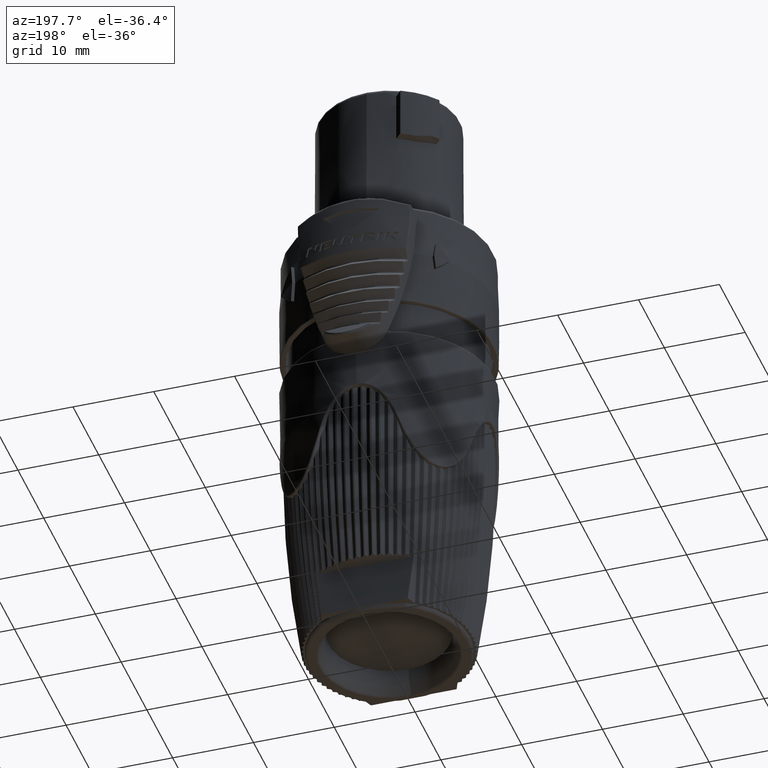
[diagram: clean part render]
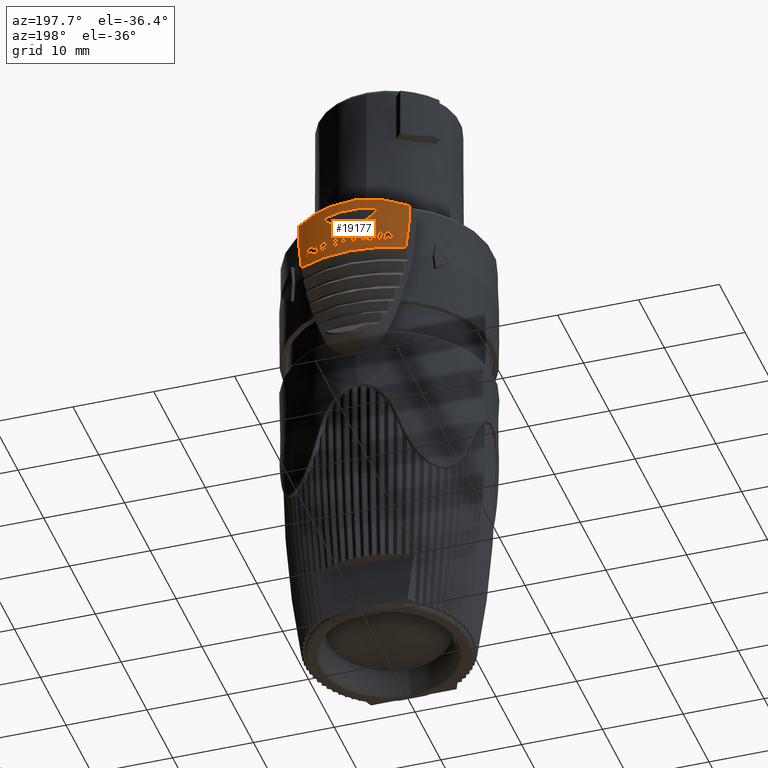
[diagram: same view with one face highlighted and labeled with its STEP entity id]
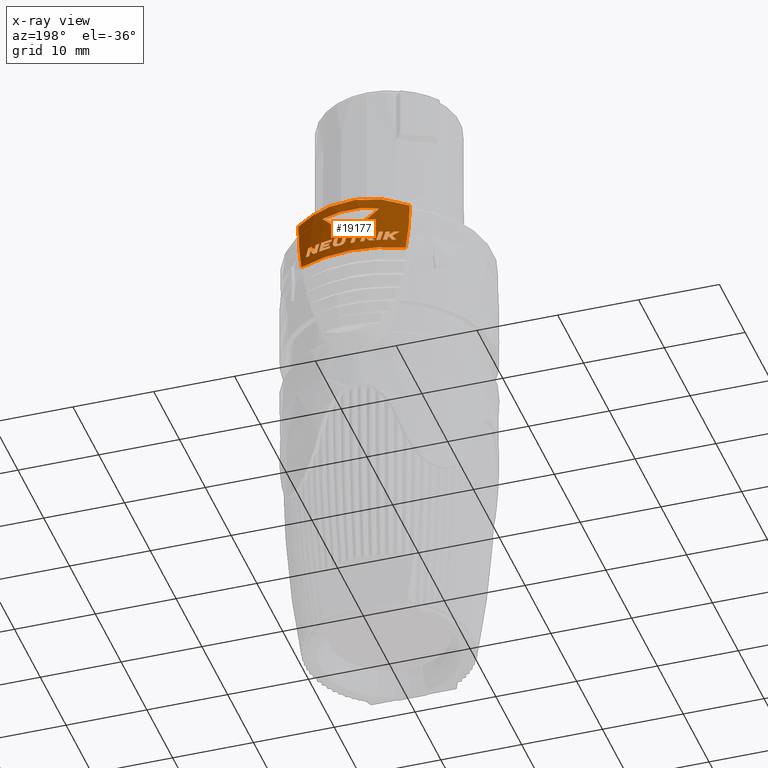
[diagram: x-ray of the same camera — body ghosted, the highlighted face saturated]
A machine part, auxiliary view. The second image highlights one B-rep face of the part: STEP entity #19177.
The next image is the same camera in x-ray: the body ghosted, the highlighted face saturated — about 0% of this face is hidden behind the body in this view.
In plain terms, the highlighted cylindrical surface (partial cylindrical patch) has radius 15.3 mm, axis along (0, 0, 1).
Its self-contained STEP definition (entity closure, byte-faithful):
#1037=CARTESIAN_POINT('',(-3.5E0,1.489429420953E1,1.119136866752E1));
#1038=CARTESIAN_POINT('',(-3.250859314078E0,1.495283960876E1,1.089114471962E1));
#1039=CARTESIAN_POINT('',(-2.726627167439E0,1.506286294228E1,1.033042631570E1));
#1040=CARTESIAN_POINT('',(-1.865806232586E0,1.519467039170E1,9.597453933149E0));
#1041=CARTESIAN_POINT('',(-9.507850406610E-1,1.527994694134E1,
8.980316596755E0));
#1042=CARTESIAN_POINT('',(-3.202698024132E-1,1.53E1,8.648022277679E0));
#1043=CARTESIAN_POINT('',(0.E0,1.53E1,8.5E0));
#1045=CARTESIAN_POINT('',(3.5E0,1.489429420953E1,1.119136866752E1));
#1046=CARTESIAN_POINT('',(3.045887542349E0,1.500100578508E1,1.127208391025E1));
#1047=CARTESIAN_POINT('',(2.125196630928E0,1.517373911809E1,1.140345153750E1));
#1048=CARTESIAN_POINT('',(7.080184998540E-1,1.530557260508E1,1.150425816914E1));
#1049=CARTESIAN_POINT('',(-7.080175151263E-1,1.530557267202E1,
1.150425822037E1));
#1050=CARTESIAN_POINT('',(-2.125196552856E0,1.517373914906E1,1.140345156103E1));
#1051=CARTESIAN_POINT('',(-3.045887538076E0,1.500100578608E1,1.127208391101E1));
#1052=CARTESIAN_POINT('',(-3.5E0,1.489429420953E1,1.119136866752E1));
#1054=CARTESIAN_POINT('',(0.E0,1.53E1,8.5E0));
#1055=CARTESIAN_POINT('',(3.202698375412E-1,1.53E1,8.648022293915E0));
#1056=CARTESIAN_POINT('',(9.507851189288E-1,1.527994693835E1,8.980316638392E0));
#1057=CARTESIAN_POINT('',(1.865806372634E0,1.519467037329E1,9.597454042785E0));
#1058=CARTESIAN_POINT('',(2.726627156356E0,1.506286294222E1,1.033042631250E1));
#1059=CARTESIAN_POINT('',(3.250859309730E0,1.495283960978E1,1.089114471438E1));
#1060=CARTESIAN_POINT('',(3.5E0,1.489429420953E1,1.119136866752E1));
#1062=CARTESIAN_POINT('',(-2.757279367205E0,1.504949867907E1,7.765E0));
#1063=CARTESIAN_POINT('',(-2.780447442119E0,1.504525396259E1,7.768070795839E0));
#1064=CARTESIAN_POINT('',(-2.825972135931E0,1.503680765675E1,7.765867209227E0));
#1065=CARTESIAN_POINT('',(-2.896092286512E0,1.502345389755E1,7.738144346066E0));
#1066=CARTESIAN_POINT('',(-2.954475606103E0,1.501205884341E1,7.690353243706E0));
#1067=CARTESIAN_POINT('',(-2.993089402795E0,1.500438508925E1,7.614803181507E0));
#1068=CARTESIAN_POINT('',(-2.999597263091E0,1.500307870172E1,7.531387846963E0));
#1069=CARTESIAN_POINT('',(-2.980256059318E0,1.500694565625E1,7.440967906742E0));
#1070=CARTESIAN_POINT('',(-2.932295302121E0,1.501642270586E1,7.357073532108E0));
#1071=CARTESIAN_POINT('',(-2.855716353819E0,1.503122236246E1,7.283920001483E0));
#1072=CARTESIAN_POINT('',(-2.756092445735E0,1.504984603170E1,7.221148625209E0));
#1073=CARTESIAN_POINT('',(-2.642686076128E0,1.507021298875E1,7.164380091546E0));
#1074=CARTESIAN_POINT('',(-2.557043198896E0,1.508487241533E1,7.122113872369E0));
#1075=CARTESIAN_POINT('',(-2.514665737191E0,1.509193348217E1,7.095519948886E0));
#1092=CARTESIAN_POINT('',(1.283836217396E0,1.524604094731E1,6.88E0));
#1093=CARTESIAN_POINT('',(1.257508028568E0,1.524825798729E1,6.88E0));
#1094=CARTESIAN_POINT('',(1.207897445402E0,1.525230239617E1,6.888449754538E0));
#1095=CARTESIAN_POINT('',(1.139280001224E0,1.525756646616E1,6.924774397722E0));
#1096=CARTESIAN_POINT('',(1.086487041801E0,1.526139323415E1,6.981701135737E0));
#1097=CARTESIAN_POINT('',(1.065569480284E0,1.526285058772E1,7.027339682405E0));
#1098=CARTESIAN_POINT('',(1.058775499871E0,1.526332186783E1,7.052695162491E0));
#1100=CARTESIAN_POINT('',(1.661433913396E0,1.520952456033E1,7.114140342389E0));
#1101=CARTESIAN_POINT('',(1.667480705760E0,1.520886403042E1,7.091573406064E0));
#1102=CARTESIAN_POINT('',(1.671137864633E0,1.520846147817E1,7.047491446459E0));
#1103=CARTESIAN_POINT('',(1.650588561371E0,1.521071422352E1,6.978417273678E0));
#1104=CARTESIAN_POINT('',(1.610290306371E0,1.521505465276E1,6.925816089458E0));
#1105=CARTESIAN_POINT('',(1.548952410981E0,1.522143738952E1,6.887972142367E0));
#1106=CARTESIAN_POINT('',(1.505257845486E0,1.522579244703E1,6.88E0));
#1107=CARTESIAN_POINT('',(1.481771709706E0,1.522807777102E1,6.88E0));
#1109=CARTESIAN_POINT('',(1.674333079263E0,1.520810996606E1,6.6E0));
#1110=CARTESIAN_POINT('',(1.723525000451E0,1.520269419374E1,6.6E0));
#1111=CARTESIAN_POINT('',(1.816769753784E0,1.519195845958E1,6.614811333401E0));
#1112=CARTESIAN_POINT('',(1.946795469395E0,1.517579620789E1,6.678833887488E0));
#1113=CARTESIAN_POINT('',(2.050430056979E0,1.516206612944E1,6.778776502084E0));
#1114=CARTESIAN_POINT('',(2.119482993590E0,1.515250883004E1,6.904906297626E0));
#1115=CARTESIAN_POINT('',(2.146998209297E0,1.514860709785E1,7.046770926415E0));
#1116=CARTESIAN_POINT('',(2.137024667947E0,1.515002596314E1,7.139697223E0));
#1117=CARTESIAN_POINT('',(2.124454514313E0,1.515178844284E1,7.186609675018E0));
#1119=CARTESIAN_POINT('',(5.818529802719E-1,1.528893217688E1,7.032108496705E0));
#1120=CARTESIAN_POINT('',(5.952191305276E-1,1.528842349948E1,6.982225344849E0));
#1121=CARTESIAN_POINT('',(6.334869624175E-1,1.528694546626E1,6.889463454400E0));
#1122=CARTESIAN_POINT('',(7.291857214309E-1,1.528273943383E1,6.764881590531E0));
#1123=CARTESIAN_POINT('',(8.485179714767E-1,1.527664962258E1,6.673271846096E0));
#1124=CARTESIAN_POINT('',(9.936587730056E-1,1.526794311102E1,6.612992902779E0));
#1125=CARTESIAN_POINT('',(1.093276054032E0,1.526097757774E1,6.6E0));
#1126=CARTESIAN_POINT('',(1.144987736998E0,1.525709681041E1,6.6E0));
#1128=CARTESIAN_POINT('',(-6.894145420842E0,1.365872546389E1,1.171794827903E1));
#1129=CARTESIAN_POINT('',(-6.394082909719E0,1.391112395872E1,1.188005365540E1));
#1130=CARTESIAN_POINT('',(-5.380788880328E0,1.435355532222E1,1.216929203687E1));
#1131=CARTESIAN_POINT('',(-3.847741227716E0,1.483644357541E1,1.249192137398E1));
#1132=CARTESIAN_POINT('',(-2.311723724954E0,1.515106748141E1,1.270510878069E1));
#1133=CARTESIAN_POINT('',(-7.679552419484E-1,1.530656502854E1,
1.281134785516E1));
#1134=CARTESIAN_POINT('',(7.679449190819E-1,1.530656542131E1,1.281134621534E1));
#1135=CARTESIAN_POINT('',(2.311711897797E0,1.515106949686E1,1.270511171260E1));
#1136=CARTESIAN_POINT('',(3.847740237708E0,1.483644407584E1,1.249192064002E1));
#1137=CARTESIAN_POINT('',(5.380787219856E0,1.435355583798E1,1.216929266728E1));
#1138=CARTESIAN_POINT('',(6.394082409058E0,1.391112431240E1,1.188005386113E1));
#1139=CARTESIAN_POINT('',(6.894145180032E0,1.365872569717E1,1.171794841375E1));
#1141=CARTESIAN_POINT('',(-6.455505968833E0,1.387143193237E1,5.500266950397E0));
#1142=CARTESIAN_POINT('',(-6.552078642594E0,1.382648259856E1,6.196386667052E0));
#1143=CARTESIAN_POINT('',(-6.712396963054E0,1.374948838109E1,7.585141519183E0));
#1144=CARTESIAN_POINT('',(-6.857418337635E0,1.367732320015E1,9.656326393471E0));
#1145=CARTESIAN_POINT('',(-6.892080700941E0,1.365977295398E1,1.103177750320E1));
#1146=CARTESIAN_POINT('',(-6.894145420842E0,1.365872546389E1,1.171794827903E1));
#1148=CARTESIAN_POINT('',(-6.447515669721E0,1.387514114616E1,5.499999995516E0));
#1149=CARTESIAN_POINT('',(-6.448413686323E0,1.387472385483E1,5.499999995550E0));
#1150=CARTESIAN_POINT('',(-6.450203031148E0,1.387389303139E1,5.500020502779E0));
#1151=CARTESIAN_POINT('',(-6.452864768825E0,1.387265131833E1,5.500101428993E0));
#1152=CARTESIAN_POINT('',(-6.454628873629E0,1.387184011614E1,5.500209955760E0));
#1153=CARTESIAN_POINT('',(-6.455505968833E0,1.387143193237E1,5.500266950397E0));
#1155=CARTESIAN_POINT('',(6.455505908953E0,1.387143214642E1,5.500267200581E0));
#1156=CARTESIAN_POINT('',(6.454628825410E0,1.387184032475E1,5.500210207046E0));
#1157=CARTESIAN_POINT('',(6.452864662070E0,1.387265128110E1,5.500101305842E0));
#1158=CARTESIAN_POINT('',(6.450202998524E0,1.387389307138E1,5.500020536587E0));
#1159=CARTESIAN_POINT('',(6.448413672813E0,1.387472386110E1,5.499999995561E0));
#1160=CARTESIAN_POINT('',(6.447515669717E0,1.387514114615E1,5.499999995527E0));
#1162=CARTESIAN_POINT('',(6.894145180032E0,1.365872569717E1,1.171794841375E1));
#1163=CARTESIAN_POINT('',(6.892080103861E0,1.365977360670E1,1.103176495506E1));
#1164=CARTESIAN_POINT('',(6.857417467163E0,1.367732350365E1,9.656297181460E0));
#1165=CARTESIAN_POINT('',(6.712396222687E0,1.374948868088E1,7.585137600614E0));
#1166=CARTESIAN_POINT('',(6.552078350765E0,1.382648296218E1,6.196385261357E0));
#1167=CARTESIAN_POINT('',(6.455505908953E0,1.387143214642E1,5.500267200581E0));
#1206=CARTESIAN_POINT('',(0.E0,0.E0,7.765E0));
#1207=DIRECTION('',(0.E0,0.E0,1.E0));
#1208=DIRECTION('',(-1.040705468762E-1,9.945699177398E-1,0.E0));
#1209=AXIS2_PLACEMENT_3D('',#1206,#1207,#1208);
#1224=CARTESIAN_POINT('',(-2.514665737191E0,1.509193348217E1,7.095519948886E0));
#1225=CARTESIAN_POINT('',(-2.659428276219E0,1.506781268960E1,6.930156061825E0));
#1226=CARTESIAN_POINT('',(-2.804024473781E0,1.504157940006E1,6.764982188502E0));
#1227=CARTESIAN_POINT('',(-2.948452866983E0,1.501321503513E1,6.6E0));
#1238=CARTESIAN_POINT('',(0.E0,0.E0,6.6E0));
#1239=DIRECTION('',(0.E0,0.E0,1.E0));
#1240=DIRECTION('',(-1.522299711126E-1,9.883450995958E-1,0.E0));
#1241=AXIS2_PLACEMENT_3D('',#1238,#1239,#1240);
#1252=CARTESIAN_POINT('',(-1.895331428232E0,1.518215132243E1,7.095519948886E0));
#1253=CARTESIAN_POINT('',(-2.040053564187E0,1.516408429050E1,6.930202214711E0));
#1254=CARTESIAN_POINT('',(-2.184649557675E0,1.514393187872E1,6.765028574505E0));
#1255=CARTESIAN_POINT('',(-2.329118558023E0,1.512168002382E1,6.6E0));
#1266=CARTESIAN_POINT('',(-1.762557258094E0,1.519813777777E1,6.6E0));
#1267=CARTESIAN_POINT('',(-1.806816895214E0,1.519300490255E1,6.765179214458E0));
#1268=CARTESIAN_POINT('',(-1.851074953478E0,1.518767627642E1,6.930352536542E0));
#1269=CARTESIAN_POINT('',(-1.895331428232E0,1.518215132243E1,7.095519948886E0));
#1280=CARTESIAN_POINT('',(0.E0,0.E0,6.6E0));
#1281=DIRECTION('',(0.E0,0.E0,1.E0));
#1282=DIRECTION('',(-8.366787960934E-2,9.964936958765E-1,0.E0));
#1283=AXIS2_PLACEMENT_3D('',#1280,#1281,#1282);
#1294=CARTESIAN_POINT('',(-1.280118558023E0,1.524635354691E1,6.6E0));
#1295=CARTESIAN_POINT('',(-1.384178946192E0,1.523761639979E1,6.988358655701E0));
#1296=CARTESIAN_POINT('',(-1.488232561489E0,1.522780706847E1,7.376692034703E0));
#1297=CARTESIAN_POINT('',(-1.592279367205E0,1.521691974142E1,7.765E0));
#1420=CARTESIAN_POINT('',(-3.161215377828E0,1.496986029778E1,6.6E0));
#1421=CARTESIAN_POINT('',(-3.265285867833E0,1.494788352399E1,6.988396356269E0));
#1422=CARTESIAN_POINT('',(-3.369339543954E0,1.492477680873E1,7.376729962267E0));
#1423=CARTESIAN_POINT('',(-3.473376187010E0,1.490052542240E1,7.765E0));
#1434=CARTESIAN_POINT('',(0.E0,0.E0,7.765E0));
#1435=DIRECTION('',(0.E0,0.E0,1.E0));
#1436=DIRECTION('',(-2.270180514386E-1,9.738905504835E-1,0.E0));
#1437=AXIS2_PLACEMENT_3D('',#1434,#1435,#1436);
#1448=CARTESIAN_POINT('',(-3.643654077899E0,1.485980433790E1,6.6E0));
#1449=CARTESIAN_POINT('',(-3.747727604631E0,1.483428529865E1,6.988407689486E0));
#1450=CARTESIAN_POINT('',(-3.851781307895E0,1.480761220004E1,7.376741396784E0));
#1451=CARTESIAN_POINT('',(-3.955814887081E0,1.477976754144E1,7.765E0));
#1462=CARTESIAN_POINT('',(0.E0,0.E0,6.6E0));
#1463=DIRECTION('',(0.E0,0.E0,1.E0));
#1464=DIRECTION('',(-2.066153841718E-1,9.784222416848E-1,0.E0));
#1465=AXIS2_PLACEMENT_3D('',#1462,#1463,#1464);
#1476=CARTESIAN_POINT('',(-3.933531408414E0,1.478571373519E1,6.6E0));
#1477=CARTESIAN_POINT('',(-4.037606887713E0,1.475802591612E1,6.988414976566E0));
#1478=CARTESIAN_POINT('',(-4.141660610374E0,1.472916741961E1,7.376748756254E0));
#1479=CARTESIAN_POINT('',(-4.245692217596E0,1.469911893936E1,7.765E0));
#1490=CARTESIAN_POINT('',(0.E0,0.E0,7.765E0));
#1491=DIRECTION('',(0.E0,0.E0,1.E0));
#1492=DIRECTION('',(-2.774962233723E-1,9.607267280627E-1,0.E0));
#1493=AXIS2_PLACEMENT_3D('',#1490,#1491,#1492);
#1504=CARTESIAN_POINT('',(-4.607521242650E0,1.458974804438E1,7.314878564949E0));
#1505=CARTESIAN_POINT('',(-4.647728373410E0,1.457705041530E1,7.464933619775E0));
#1506=CARTESIAN_POINT('',(-4.687931608026E0,1.456417123769E1,7.614974133988E0));
#1507=CARTESIAN_POINT('',(-4.728130917667E0,1.455110916822E1,7.765E0));
#1518=CARTESIAN_POINT('',(-4.607521242650E0,1.458974804438E1,7.314878564949E0));
#1519=CARTESIAN_POINT('',(-4.802182455561E0,1.452827298183E1,7.465579125445E0));
#1520=CARTESIAN_POINT('',(-4.995995087411E0,1.446278335422E1,7.615622741296E0));
#1521=CARTESIAN_POINT('',(-5.188946979992E0,1.439322164211E1,7.765E0));
#1532=CARTESIAN_POINT('',(0.E0,0.E0,7.765E0));
#1533=DIRECTION('',(0.E0,0.E0,1.E0));
#1534=DIRECTION('',(-3.391468614374E-1,9.407334406606E-1,0.E0));
#1535=AXIS2_PLACEMENT_3D('',#1532,#1533,#1534);
#1546=CARTESIAN_POINT('',(-4.966367540114E0,1.447153044624E1,7.150058932275E0));
#1547=CARTESIAN_POINT('',(-5.232938660637E0,1.438004805846E1,7.356429871169E0));
#1548=CARTESIAN_POINT('',(-5.497726444823E0,1.428095155653E1,7.561420207418E0));
#1549=CARTESIAN_POINT('',(-5.760692217596E0,1.417407581376E1,7.765E0));
#1560=CARTESIAN_POINT('',(-4.966367540114E0,1.447153044624E1,7.150058932275E0));
#1561=CARTESIAN_POINT('',(-5.127540874318E0,1.441621867267E1,6.966190256184E0));
#1562=CARTESIAN_POINT('',(-5.288265107842E0,1.435805236907E1,6.782833920101E0));
#1563=CARTESIAN_POINT('',(-5.448531408414E0,1.429697539662E1,6.6E0));
#1574=CARTESIAN_POINT('',(0.E0,0.E0,6.6E0));
#1575=DIRECTION('',(0.E0,0.E0,1.E0));
#1576=DIRECTION('',(-3.256928783108E-1,9.454756205306E-1,0.E0));
#1577=AXIS2_PLACEMENT_3D('',#1574,#1575,#1576);
#1588=CARTESIAN_POINT('',(-4.548744278623E0,1.460818008815E1,7.095519948886E0));
#1589=CARTESIAN_POINT('',(-4.693855072377E0,1.456299500083E1,6.929975631857E0));
#1590=CARTESIAN_POINT('',(-4.838642384377E0,1.451553941392E1,6.764800347100E0));
#1591=CARTESIAN_POINT('',(-4.983101038155E0,1.446577699412E1,6.6E0));
#1602=CARTESIAN_POINT('',(-4.415970108485E0,1.464886371023E1,6.6E0));
#1603=CARTESIAN_POINT('',(-4.460232641027E0,1.463552055786E1,6.765190020320E0));
#1604=CARTESIAN_POINT('',(-4.504490709296E0,1.462195991349E1,6.930363379744E0));
#1605=CARTESIAN_POINT('',(-4.548744278623E0,1.460818008815E1,7.095519948886E0));
#1616=CARTESIAN_POINT('',(0.E0,0.E0,6.6E0));
#1617=DIRECTION('',(0.E0,0.E0,1.E0));
#1618=DIRECTION('',(-2.570935561055E-1,9.663865186399E-1,0.E0));
#1619=AXIS2_PLACEMENT_3D('',#1616,#1617,#1618);
#1630=CARTESIAN_POINT('',(-1.227376262810E0,1.525069006667E1,7.485E0));
#1631=CARTESIAN_POINT('',(-1.252385198145E0,1.524867734636E1,7.578334617314E0));
#1632=CARTESIAN_POINT('',(-1.277393789569E0,1.524660273909E1,7.671667951137E0));
#1633=CARTESIAN_POINT('',(-1.302402036690E0,1.524446617415E1,7.765E0));
#1644=CARTESIAN_POINT('',(0.E0,0.E0,7.485E0));
#1645=DIRECTION('',(0.E0,0.E0,1.E0));
#1646=DIRECTION('',(-5.234084724711E-2,9.986292784159E-1,0.E0));
#1647=AXIS2_PLACEMENT_3D('',#1644,#1645,#1646);
#1658=CARTESIAN_POINT('',(-5.636799275792E-1,1.528961297546E1,6.6E0));
#1659=CARTESIAN_POINT('',(-6.427267757704E-1,1.528669876685E1,
6.895006853628E0));
#1660=CARTESIAN_POINT('',(-7.217717887244E-1,1.528317082518E1,
7.190006858057E0));
#1661=CARTESIAN_POINT('',(-8.008149628807E-1,1.527902795976E1,7.485E0));
#1672=CARTESIAN_POINT('',(0.E0,0.E0,6.6E0));
#1673=DIRECTION('',(0.E0,0.E0,1.E0));
#1674=DIRECTION('',(-5.309884150856E-3,9.999859024658E-1,0.E0));
#1675=AXIS2_PLACEMENT_3D('',#1672,#1673,#1674);
#1686=CARTESIAN_POINT('',(-8.124122750810E-2,1.529978430773E1,6.6E0));
#1687=CARTESIAN_POINT('',(-1.602867753396E-1,1.529936457911E1,
6.895002000619E0));
#1688=CARTESIAN_POINT('',(-2.393317872080E-1,1.529833229576E1,
7.190002000997E0));
#1689=CARTESIAN_POINT('',(-3.183762628096E-1,1.529668711046E1,7.485E0));
#1700=CARTESIAN_POINT('',(0.E0,0.E0,7.485E0));
#1701=DIRECTION('',(0.E0,0.E0,1.E0));
#1702=DIRECTION('',(1.115187824774E-2,9.999378158723E-1,0.E0));
#1703=AXIS2_PLACEMENT_3D('',#1700,#1701,#1702);
#1714=CARTESIAN_POINT('',(1.706237371904E-1,1.529904858285E1,7.485E0));
#1715=CARTESIAN_POINT('',(1.456151816381E-1,1.529932749256E1,7.578333199945E0));
#1716=CARTESIAN_POINT('',(1.206065903431E-1,1.529954507514E1,7.671666533284E0));
#1717=CARTESIAN_POINT('',(9.559796330965E-2,1.529970133792E1,7.765E0));
#1728=CARTESIAN_POINT('',(0.E0,0.E0,7.765E0));
#1729=DIRECTION('',(0.E0,0.E0,1.E0));
#1730=DIRECTION('',(6.248232896055E-3,9.999804796023E-1,0.E0));
#1731=AXIS2_PLACEMENT_3D('',#1728,#1729,#1730);
#1742=CARTESIAN_POINT('',(5.818529802719E-1,1.528893217688E1,7.032108496705E0));
#1743=CARTESIAN_POINT('',(5.163946430001E-1,1.529142333377E1,7.276402337183E0));
#1744=CARTESIAN_POINT('',(4.509354138465E-1,1.529349355123E1,7.520699506208E0));
#1745=CARTESIAN_POINT('',(3.854752938245E-1,1.529514330753E1,7.765E0));
#1760=CARTESIAN_POINT('',(0.E0,0.E0,6.6E0));
#1761=DIRECTION('',(0.E0,0.E0,1.E0));
#1762=DIRECTION('',(1.094335345923E-1,9.939941154286E-1,0.E0));
#1763=AXIS2_PLACEMENT_3D('',#1760,#1761,#1762);
#1778=CARTESIAN_POINT('',(2.124454514313E0,1.515178844284E1,7.186609675018E0));
#1779=CARTESIAN_POINT('',(2.072797203979E0,1.515903139020E1,7.379397381768E0));
#1780=CARTESIAN_POINT('',(2.021137460693E0,1.516600531828E1,7.572194168416E0));
#1781=CARTESIAN_POINT('',(1.969475293824E0,1.517271126289E1,7.765E0));
#1792=CARTESIAN_POINT('',(0.E0,0.E0,7.765E0));
#1793=DIRECTION('',(0.E0,0.E0,1.E0));
#1794=DIRECTION('',(1.287238754134E-1,9.916804746987E-1,0.E0));
#1795=AXIS2_PLACEMENT_3D('',#1792,#1793,#1794);
#1806=CARTESIAN_POINT('',(1.661433913396E0,1.520952456033E1,7.114140342389E0));
#1807=CARTESIAN_POINT('',(1.603303805947E0,1.521587448479E1,7.331084856840E0));
#1808=CARTESIAN_POINT('',(1.545171363489E0,1.522188744336E1,7.548038085659E0));
#1809=CARTESIAN_POINT('',(1.487036593753E0,1.522756455146E1,7.765E0));
#1824=CARTESIAN_POINT('',(0.E0,0.E0,6.88E0));
#1825=DIRECTION('',(0.E0,0.E0,1.E0));
#1826=DIRECTION('',(9.684782416382E-2,9.952992007204E-1,0.E0));
#1827=AXIS2_PLACEMENT_3D('',#1824,#1825,#1826);
#1842=CARTESIAN_POINT('',(1.058775499871E0,1.526332186783E1,7.052695162491E0));
#1843=CARTESIAN_POINT('',(9.951566852247E-1,1.526773493353E1,7.290123811068E0));
#1844=CARTESIAN_POINT('',(9.315361819922E-1,1.527174846544E1,7.527558761535E0));
#1845=CARTESIAN_POINT('',(8.679139938956E-1,1.527536334426E1,7.765E0));
#1856=CARTESIAN_POINT('',(0.E0,0.E0,7.765E0));
#1857=DIRECTION('',(0.E0,0.E0,1.E0));
#1858=DIRECTION('',(5.672640482978E-2,9.983897610628E-1,0.E0));
#1859=AXIS2_PLACEMENT_3D('',#1856,#1857,#1858);
#1870=CARTESIAN_POINT('',(2.334378398220E0,1.512086893978E1,7.485E0));
#1871=CARTESIAN_POINT('',(2.309370451543E0,1.512472969743E1,7.578330927592E0));
#1872=CARTESIAN_POINT('',(2.284361859797E0,1.512852703665E1,7.671664262613E0));
#1873=CARTESIAN_POINT('',(2.259352624339E0,1.513226109076E1,7.765E0));
#1884=CARTESIAN_POINT('',(0.E0,0.E0,7.485E0));
#1885=DIRECTION('',(0.E0,0.E0,1.E0));
#1886=DIRECTION('',(2.124143593561E-1,9.771796866182E-1,0.E0));
#1887=AXIS2_PLACEMENT_3D('',#1884,#1885,#1886);
#1898=CARTESIAN_POINT('',(3.293615416515E0,1.494128834767E1,7.322E0));
#1899=CARTESIAN_POINT('',(3.279057169651E0,1.494449752650E1,7.376332116966E0));
#1900=CARTESIAN_POINT('',(3.264498596669E0,1.494768446581E1,7.430665451022E0));
#1901=CARTESIAN_POINT('',(3.249939698149E0,1.495084920526E1,7.485E0));
#1912=CARTESIAN_POINT('',(0.E0,0.E0,7.322E0));
#1913=DIRECTION('',(0.E0,0.E0,1.E0));
#1914=DIRECTION('',(2.152689814716E-1,9.765547939651E-1,0.E0));
#1915=AXIS2_PLACEMENT_3D('',#1912,#1913,#1914);
#1926=CARTESIAN_POINT('',(2.669641190396E0,1.506529176334E1,7.042E0));
#1927=CARTESIAN_POINT('',(2.644633348265E0,1.506972327164E1,7.135330537421E0));
#1928=CARTESIAN_POINT('',(2.619624756365E0,1.507409068975E1,7.228663873017E0));
#1929=CARTESIAN_POINT('',(2.594615416515E0,1.507839417313E1,7.322E0));
#1940=CARTESIAN_POINT('',(0.E0,0.E0,7.042E0));
#1941=DIRECTION('',(0.E0,0.E0,1.E0));
#1942=DIRECTION('',(2.201726268233E-1,9.754609240753E-1,0.E0));
#1943=AXIS2_PLACEMENT_3D('',#1940,#1941,#1942);
#1954=CARTESIAN_POINT('',(3.412316908762E0,1.491462682450E1,6.879E0));
#1955=CARTESIAN_POINT('',(3.397758676046E0,1.491795760202E1,6.933332064163E0));
#1956=CARTESIAN_POINT('',(3.383200103047E0,1.492126602615E1,6.987665398281E0));
#1957=CARTESIAN_POINT('',(3.368641190396E0,1.492455213835E1,7.042E0));
#1968=CARTESIAN_POINT('',(0.E0,0.E0,6.879E0));
#1969=DIRECTION('',(0.E0,0.E0,1.E0));
#1970=DIRECTION('',(2.230272489387E-1,9.748122107518E-1,0.E0));
#1971=AXIS2_PLACEMENT_3D('',#1968,#1969,#1970);
#1982=CARTESIAN_POINT('',(2.571513433522E0,1.508235123120E1,6.6E0));
#1983=CARTESIAN_POINT('',(2.546594871669E0,1.508659980064E1,6.692997338884E0));
#1984=CARTESIAN_POINT('',(2.521675596221E0,1.509078494257E1,6.785997340945E0));
#1985=CARTESIAN_POINT('',(2.496755608833E0,1.509490680428E1,6.879E0));
#1996=CARTESIAN_POINT('',(0.E0,0.E0,6.6E0));
#1997=DIRECTION('',(0.E0,0.E0,1.E0));
#1998=DIRECTION('',(2.594453224524E-1,9.657577981345E-1,0.E0));
#1999=AXIS2_PLACEMENT_3D('',#1996,#1997,#1998);
#2010=CARTESIAN_POINT('',(3.969513433522E0,1.477609431146E1,6.6E0));
#2011=CARTESIAN_POINT('',(3.865479945152E0,1.480404231456E1,6.988258264285E0));
#2012=CARTESIAN_POINT('',(3.761426241026E0,1.483081792676E1,7.376591974797E0));
#2013=CARTESIAN_POINT('',(3.657352624339E0,1.485643873145E1,7.765E0));
#2024=CARTESIAN_POINT('',(0.E0,0.E0,7.765E0));
#2025=DIRECTION('',(0.E0,0.E0,1.E0));
#2026=DIRECTION('',(2.390426551856E-1,9.710090674148E-1,0.E0));
#2027=AXIS2_PLACEMENT_3D('',#2024,#2025,#2026);
#2038=CARTESIAN_POINT('',(4.259390764036E0,1.469515533498E1,6.6E0));
#2039=CARTESIAN_POINT('',(4.155359252718E0,1.472530886847E1,6.988250885829E0));
#2040=CARTESIAN_POINT('',(4.051305529077E0,1.475427150293E1,7.376584669175E0));
#2041=CARTESIAN_POINT('',(3.947229954854E0,1.478206263292E1,7.765E0));
#2052=CARTESIAN_POINT('',(0.E0,0.E0,6.6E0));
#2053=DIRECTION('',(0.E0,0.E0,1.E0));
#2054=DIRECTION('',(3.088490695449E-1,9.511110619908E-1,0.E0));
#2055=AXIS2_PLACEMENT_3D('',#2052,#2053,#2054);
#2066=CARTESIAN_POINT('',(5.162582079440E0,1.440269927038E1,7.178390324982E0));
#2067=CARTESIAN_POINT('',(5.017145286355E0,1.445483042771E1,6.985982033571E0));
#2068=CARTESIAN_POINT('',(4.871413005083E0,1.450458224840E1,6.793182820605E0));
#2069=CARTESIAN_POINT('',(4.725390764036E0,1.455199924846E1,6.6E0));
#2080=CARTESIAN_POINT('',(5.317561299929E0,1.434620304546E1,6.6E0));
#2081=CARTESIAN_POINT('',(5.265909210175E0,1.436534840069E1,6.792768223278E0));
#2082=CARTESIAN_POINT('',(5.214249442256E0,1.438417933906E1,6.985565101860E0));
#2083=CARTESIAN_POINT('',(5.162582079440E0,1.440269927038E1,7.178390324982E0));
#2094=CARTESIAN_POINT('',(0.E0,0.E0,6.6E0));
#2095=DIRECTION('',(0.E0,0.E0,1.E0));
#2096=DIRECTION('',(3.790849673203E-1,9.253618684341E-1,0.E0));
#2097=AXIS2_PLACEMENT_3D('',#2094,#2095,#2096);
#2108=CARTESIAN_POINT('',(5.8E0,1.415803658704E1,6.6E0));
#2109=CARTESIAN_POINT('',(5.695981323798E0,1.420064901556E1,6.988202984522E0));
#2110=CARTESIAN_POINT('',(5.591927440903E0,1.424193742213E1,7.376537362212E0));
#2111=CARTESIAN_POINT('',(5.487839190818E0,1.428193337807E1,7.765E0));
#2122=CARTESIAN_POINT('',(0.E0,0.E0,7.765E0));
#2123=DIRECTION('',(0.E0,0.E0,1.E0));
#2124=DIRECTION('',(3.586823000534E-1,9.334596979133E-1,0.E0));
#2125=AXIS2_PLACEMENT_3D('',#2122,#2123,#2124);
#2136=CARTESIAN_POINT('',(5.021839190818E0,1.445237458488E1,7.765E0));
#2137=CARTESIAN_POINT('',(4.876391025528E0,1.450291418945E1,7.572576663520E0));
#2138=CARTESIAN_POINT('',(4.730658872728E0,1.455109236228E1,7.379777620518E0));
#2139=CARTESIAN_POINT('',(4.584647875414E0,1.459695186875E1,7.186609675018E0));
#2150=CARTESIAN_POINT('',(4.584647875414E0,1.459695186875E1,7.186609675018E0));
#2151=CARTESIAN_POINT('',(4.532994296761E0,1.461317535648E1,7.379383454944E0));
#2152=CARTESIAN_POINT('',(4.481334537960E0,1.462909957400E1,7.572180299495E0));
#2153=CARTESIAN_POINT('',(4.429668654925E0,1.464472722886E1,7.765E0));
#2164=CARTESIAN_POINT('',(0.E0,0.E0,7.765E0));
#2165=DIRECTION('',(0.E0,0.E0,1.E0));
#2166=DIRECTION('',(2.895208271193E-1,9.571717143043E-1,0.E0));
#2167=AXIS2_PLACEMENT_3D('',#2164,#2165,#2166);
#2206=CARTESIAN_POINT('',(0.E0,0.E0,5.5E0));
#2207=DIRECTION('',(0.E0,0.E0,1.E0));
#2208=DIRECTION('',(4.214062527995E-1,9.068719700716E-1,0.E0));
#2209=AXIS2_PLACEMENT_3D('',#2206,#2207,#2208);
#16145=VERTEX_POINT('',#1037);
#16146=VERTEX_POINT('',#1043);
#16149=VERTEX_POINT('',#1060);
#16151=CARTESIAN_POINT('',(-1.592279367205E0,1.521691974142E1,7.765E0));
#16152=CARTESIAN_POINT('',(-2.757279367205E0,1.504949867907E1,7.765E0));
#16153=VERTEX_POINT('',#16151);
#16154=VERTEX_POINT('',#16152);
#16159=VERTEX_POINT('',#1075);
#16161=VERTEX_POINT('',#1227);
#16163=CARTESIAN_POINT('',(-2.329118558023E0,1.512168002382E1,6.6E0));
#16164=VERTEX_POINT('',#16163);
#16167=VERTEX_POINT('',#1252);
#16169=VERTEX_POINT('',#1266);
#16171=CARTESIAN_POINT('',(-1.280118558023E0,1.524635354691E1,6.6E0));
#16172=VERTEX_POINT('',#16171);
#16189=VERTEX_POINT('',#1420);
#16190=VERTEX_POINT('',#1423);
#16193=CARTESIAN_POINT('',(-3.955814887081E0,1.477976754144E1,7.765E0));
#16194=VERTEX_POINT('',#16193);
#16197=VERTEX_POINT('',#1448);
#16199=VERTEX_POINT('',#1476);
#16200=VERTEX_POINT('',#1479);
#16203=CARTESIAN_POINT('',(-4.728130917667E0,1.455110916822E1,7.765E0));
#16204=VERTEX_POINT('',#16203);
#16207=VERTEX_POINT('',#1504);
#16209=VERTEX_POINT('',#1521);
#16211=CARTESIAN_POINT('',(-5.760692217596E0,1.417407581376E1,7.765E0));
#16212=VERTEX_POINT('',#16211);
#16215=VERTEX_POINT('',#1546);
#16217=VERTEX_POINT('',#1563);
#16219=CARTESIAN_POINT('',(-4.983101038155E0,1.446577699412E1,6.6E0));
#16220=VERTEX_POINT('',#16219);
#16223=VERTEX_POINT('',#1588);
#16225=VERTEX_POINT('',#1602);
#16227=VERTEX_POINT('',#1630);
#16228=VERTEX_POINT('',#1633);
#16231=CARTESIAN_POINT('',(-8.008149628807E-1,1.527902795976E1,7.485E0));
#16232=VERTEX_POINT('',#16231);
#16235=VERTEX_POINT('',#1658);
#16237=CARTESIAN_POINT('',(-8.124122750810E-2,1.529978430773E1,6.6E0));
#16238=VERTEX_POINT('',#16237);
#16241=VERTEX_POINT('',#1689);
#16243=CARTESIAN_POINT('',(1.706237371904E-1,1.529904858285E1,7.485E0));
#16244=VERTEX_POINT('',#16243);
#16247=VERTEX_POINT('',#1717);
#16249=VERTEX_POINT('',#1742);
#16250=VERTEX_POINT('',#1745);
#16253=VERTEX_POINT('',#1126);
#16255=CARTESIAN_POINT('',(1.674333079263E0,1.520810996606E1,6.6E0));
#16256=VERTEX_POINT('',#16255);
#16259=VERTEX_POINT('',#1117);
#16261=VERTEX_POINT('',#1781);
#16263=CARTESIAN_POINT('',(1.487036593753E0,1.522756455146E1,7.765E0));
#16264=VERTEX_POINT('',#16263);
#16267=VERTEX_POINT('',#1806);
#16269=VERTEX_POINT('',#1107);
#16271=CARTESIAN_POINT('',(1.283836217396E0,1.524604094731E1,6.88E0));
#16272=VERTEX_POINT('',#16271);
#16275=VERTEX_POINT('',#1098);
#16277=VERTEX_POINT('',#1845);
#16279=VERTEX_POINT('',#1870);
#16280=VERTEX_POINT('',#1873);
#16283=CARTESIAN_POINT('',(3.249939698149E0,1.495084920526E1,7.485E0));
#16284=VERTEX_POINT('',#16283);
#16287=VERTEX_POINT('',#1898);
#16289=CARTESIAN_POINT('',(2.594615416515E0,1.507839417313E1,7.322E0));
#16290=VERTEX_POINT('',#16289);
#16293=VERTEX_POINT('',#1926);
#16295=CARTESIAN_POINT('',(3.368641190396E0,1.492455213835E1,7.042E0));
#16296=VERTEX_POINT('',#16295);
#16299=VERTEX_POINT('',#1954);
#16301=CARTESIAN_POINT('',(2.496755608833E0,1.509490680428E1,6.879E0));
#16302=VERTEX_POINT('',#16301);
#16305=VERTEX_POINT('',#1982);
#16307=CARTESIAN_POINT('',(3.969513433522E0,1.477609431146E1,6.6E0));
#16308=VERTEX_POINT('',#16307);
#16311=VERTEX_POINT('',#2013);
#16313=VERTEX_POINT('',#2038);
#16314=VERTEX_POINT('',#2041);
#16317=CARTESIAN_POINT('',(4.725390764036E0,1.455199924846E1,6.6E0));
#16318=VERTEX_POINT('',#16317);
#16321=VERTEX_POINT('',#2066);
#16323=VERTEX_POINT('',#2080);
#16325=CARTESIAN_POINT('',(5.8E0,1.415803658704E1,6.6E0));
#16326=VERTEX_POINT('',#16325);
#16329=VERTEX_POINT('',#2111);
#16331=CARTESIAN_POINT('',(5.021839190818E0,1.445237458488E1,7.765E0));
#16332=VERTEX_POINT('',#16331);
#16335=VERTEX_POINT('',#2139);
#16337=VERTEX_POINT('',#2153);
#16339=VERTEX_POINT('',#1155);
#16340=VERTEX_POINT('',#1160);
#16429=VERTEX_POINT('',#1148);
#16430=VERTEX_POINT('',#1153);
#16455=VERTEX_POINT('',#1128);
#16456=VERTEX_POINT('',#1139);
#19008=CARTESIAN_POINT('',(0.E0,0.E0,-1.35E1));
#19009=DIRECTION('',(0.E0,0.E0,1.E0));
#19010=DIRECTION('',(1.E0,0.E0,0.E0));
#19011=AXIS2_PLACEMENT_3D('',#19008,#19009,#19010);
#19012=CYLINDRICAL_SURFACE('',#19011,1.53E1);
#19014=ORIENTED_EDGE('',*,*,#19013,.F.);
#19015=ORIENTED_EDGE('',*,*,#18955,.F.);
#19016=ORIENTED_EDGE('',*,*,#18981,.F.);
#19018=ORIENTED_EDGE('',*,*,#19017,.F.);
#19020=ORIENTED_EDGE('',*,*,#19019,.F.);
#19022=ORIENTED_EDGE('',*,*,#19021,.F.);
#19023=EDGE_LOOP('',(#19014,#19015,#19016,#19018,#19020,#19022));
#19024=FACE_OUTER_BOUND('',#19023,.F.);
#19026=ORIENTED_EDGE('',*,*,#19025,.F.);
#19028=ORIENTED_EDGE('',*,*,#19027,.F.);
#19030=ORIENTED_EDGE('',*,*,#19029,.F.);
#19031=EDGE_LOOP('',(#19026,#19028,#19030));
#19032=FACE_BOUND('',#19031,.F.);
#19034=ORIENTED_EDGE('',*,*,#19033,.F.);
#19036=ORIENTED_EDGE('',*,*,#19035,.F.);
#19038=ORIENTED_EDGE('',*,*,#19037,.T.);
#19040=ORIENTED_EDGE('',*,*,#19039,.T.);
#19042=ORIENTED_EDGE('',*,*,#19041,.T.);
#19044=ORIENTED_EDGE('',*,*,#19043,.T.);
#19046=ORIENTED_EDGE('',*,*,#19045,.F.);
#19048=ORIENTED_EDGE('',*,*,#19047,.F.);
#19049=EDGE_LOOP('',(#19034,#19036,#19038,#19040,#19042,#19044,#19046,#19048));
#19050=FACE_BOUND('',#19049,.F.);
#19052=ORIENTED_EDGE('',*,*,#19051,.F.);
#19054=ORIENTED_EDGE('',*,*,#19053,.T.);
#19056=ORIENTED_EDGE('',*,*,#19055,.T.);
#19058=ORIENTED_EDGE('',*,*,#19057,.F.);
#19059=EDGE_LOOP('',(#19052,#19054,#19056,#19058));
#19060=FACE_BOUND('',#19059,.F.);
#19062=ORIENTED_EDGE('',*,*,#19061,.F.);
#19064=ORIENTED_EDGE('',*,*,#19063,.T.);
#19066=ORIENTED_EDGE('',*,*,#19065,.T.);
#19068=ORIENTED_EDGE('',*,*,#19067,.T.);
#19070=ORIENTED_EDGE('',*,*,#19069,.T.);
#19072=ORIENTED_EDGE('',*,*,#19071,.F.);
#19074=ORIENTED_EDGE('',*,*,#19073,.T.);
#19076=ORIENTED_EDGE('',*,*,#19075,.F.);
#19078=ORIENTED_EDGE('',*,*,#19077,.F.);
#19080=ORIENTED_EDGE('',*,*,#19079,.T.);
#19082=ORIENTED_EDGE('',*,*,#19081,.F.);
#19083=EDGE_LOOP('',(#19062,#19064,#19066,#19068,#19070,#19072,#19074,#19076,
#19078,#19080,#19082));
#19084=FACE_BOUND('',#19083,.F.);
#19086=ORIENTED_EDGE('',*,*,#19085,.T.);
#19088=ORIENTED_EDGE('',*,*,#19087,.F.);
#19090=ORIENTED_EDGE('',*,*,#19089,.F.);
#19092=ORIENTED_EDGE('',*,*,#19091,.T.);
#19094=ORIENTED_EDGE('',*,*,#19093,.F.);
#19096=ORIENTED_EDGE('',*,*,#19095,.T.);
#19098=ORIENTED_EDGE('',*,*,#19097,.T.);
#19100=ORIENTED_EDGE('',*,*,#19099,.T.);
#19101=EDGE_LOOP('',(#19086,#19088,#19090,#19092,#19094,#19096,#19098,#19100));
#19102=FACE_BOUND('',#19101,.F.);
#19104=ORIENTED_EDGE('',*,*,#19103,.T.);
#19106=ORIENTED_EDGE('',*,*,#19105,.F.);
#19108=ORIENTED_EDGE('',*,*,#19107,.F.);
#19110=ORIENTED_EDGE('',*,*,#19109,.F.);
#19112=ORIENTED_EDGE('',*,*,#19111,.F.);
#19114=ORIENTED_EDGE('',*,*,#19113,.F.);
#19116=ORIENTED_EDGE('',*,*,#19115,.T.);
#19118=ORIENTED_EDGE('',*,*,#19117,.F.);
#19120=ORIENTED_EDGE('',*,*,#19119,.F.);
#19122=ORIENTED_EDGE('',*,*,#19121,.F.);
#19124=ORIENTED_EDGE('',*,*,#19123,.T.);
#19126=ORIENTED_EDGE('',*,*,#19125,.F.);
#19127=EDGE_LOOP('',(#19104,#19106,#19108,#19110,#19112,#19114,#19116,#19118,
#19120,#19122,#19124,#19126));
#19128=FACE_BOUND('',#19127,.F.);
#19130=ORIENTED_EDGE('',*,*,#19129,.T.);
#19132=ORIENTED_EDGE('',*,*,#19131,.F.);
#19134=ORIENTED_EDGE('',*,*,#19133,.F.);
#19136=ORIENTED_EDGE('',*,*,#19135,.T.);
#19138=ORIENTED_EDGE('',*,*,#19137,.T.);
#19140=ORIENTED_EDGE('',*,*,#19139,.F.);
#19142=ORIENTED_EDGE('',*,*,#19141,.T.);
#19144=ORIENTED_EDGE('',*,*,#19143,.T.);
#19146=ORIENTED_EDGE('',*,*,#19145,.T.);
#19148=ORIENTED_EDGE('',*,*,#19147,.F.);
#19150=ORIENTED_EDGE('',*,*,#19149,.T.);
#19152=ORIENTED_EDGE('',*,*,#19151,.T.);
#19153=EDGE_LOOP('',(#19130,#19132,#19134,#19136,#19138,#19140,#19142,#19144,
#19146,#19148,#19150,#19152));
#19154=FACE_BOUND('',#19153,.F.);
#19156=ORIENTED_EDGE('',*,*,#19155,.T.);
#19158=ORIENTED_EDGE('',*,*,#19157,.F.);
#19160=ORIENTED_EDGE('',*,*,#19159,.F.);
#19162=ORIENTED_EDGE('',*,*,#19161,.F.);
#19164=ORIENTED_EDGE('',*,*,#19163,.F.);
#19166=ORIENTED_EDGE('',*,*,#19165,.F.);
#19168=ORIENTED_EDGE('',*,*,#19167,.T.);
#19170=ORIENTED_EDGE('',*,*,#19169,.T.);
#19172=ORIENTED_EDGE('',*,*,#19171,.T.);
#19174=ORIENTED_EDGE('',*,*,#19173,.T.);
#19175=EDGE_LOOP('',(#19156,#19158,#19160,#19162,#19164,#19166,#19168,#19170,
#19172,#19174));
#19176=FACE_BOUND('',#19175,.F.);
#19177=ADVANCED_FACE('',(#19024,#19032,#19050,#19060,#19084,#19102,#19128,
#19154,#19176),#19012,.T.);
#1044=B_SPLINE_CURVE_WITH_KNOTS('',3,(#1037,#1038,#1039,#1040,#1041,#1042,
#1043),.UNSPECIFIED.,.F.,.F.,(4,1,1,1,4),(0.E0,2.5E-1,5.E-1,7.5E-1,1.E0),
.UNSPECIFIED.);
#1053=B_SPLINE_CURVE_WITH_KNOTS('',3,(#1045,#1046,#1047,#1048,#1049,#1050,#1051,
#1052),.UNSPECIFIED.,.F.,.F.,(4,1,1,1,1,4),(0.E0,2.E-1,4.E-1,6.E-1,8.E-1,1.E0),
.UNSPECIFIED.);
#1061=B_SPLINE_CURVE_WITH_KNOTS('',3,(#1054,#1055,#1056,#1057,#1058,#1059,
#1060),.UNSPECIFIED.,.F.,.F.,(4,1,1,1,4),(0.E0,2.5E-1,5.E-1,7.5E-1,1.E0),
.UNSPECIFIED.);
#1076=B_SPLINE_CURVE_WITH_KNOTS('',3,(#1062,#1063,#1064,#1065,#1066,#1067,#1068,
#1069,#1070,#1071,#1072,#1073,#1074,#1075),.UNSPECIFIED.,.F.,.F.,(4,1,1,1,1,1,1,
1,1,1,1,4),(0.E0,9.090909090909E-2,1.818181818182E-1,2.727272727273E-1,
3.636363636364E-1,4.545454545455E-1,5.454545454545E-1,6.363636363636E-1,
7.272727272727E-1,8.181818181818E-1,9.090909090909E-1,1.E0),.UNSPECIFIED.);
#1099=B_SPLINE_CURVE_WITH_KNOTS('',3,(#1092,#1093,#1094,#1095,#1096,#1097,
#1098),.UNSPECIFIED.,.F.,.F.,(4,1,1,1,4),(0.E0,2.5E-1,5.E-1,7.5E-1,1.E0),
.UNSPECIFIED.);
#1108=B_SPLINE_CURVE_WITH_KNOTS('',3,(#1100,#1101,#1102,#1103,#1104,#1105,#1106,
#1107),.UNSPECIFIED.,.F.,.F.,(4,1,1,1,1,4),(0.E0,2.E-1,4.E-1,6.E-1,8.E-1,1.E0),
.UNSPECIFIED.);
#1118=B_SPLINE_CURVE_WITH_KNOTS('',3,(#1109,#1110,#1111,#1112,#1113,#1114,#1115,
#1116,#1117),.UNSPECIFIED.,.F.,.F.,(4,1,1,1,1,1,4),(0.E0,1.666666666667E-1,
3.333333333333E-1,5.E-1,6.666666666667E-1,8.333333333333E-1,1.E0),
.UNSPECIFIED.);
#1127=B_SPLINE_CURVE_WITH_KNOTS('',3,(#1119,#1120,#1121,#1122,#1123,#1124,#1125,
#1126),.UNSPECIFIED.,.F.,.F.,(4,1,1,1,1,4),(0.E0,2.E-1,4.E-1,6.E-1,8.E-1,1.E0),
.UNSPECIFIED.);
#1140=B_SPLINE_CURVE_WITH_KNOTS('',3,(#1128,#1129,#1130,#1131,#1132,#1133,#1134,
#1135,#1136,#1137,#1138,#1139),.UNSPECIFIED.,.F.,.F.,(4,1,1,1,1,1,1,1,1,4),
(0.E0,1.111111111111E-1,2.222222222222E-1,3.333333333333E-1,4.444444444444E-1,
5.555555555556E-1,6.666666666667E-1,7.777777777778E-1,8.888888888889E-1,1.E0),
.UNSPECIFIED.);
#1147=B_SPLINE_CURVE_WITH_KNOTS('',3,(#1141,#1142,#1143,#1144,#1145,#1146),
.UNSPECIFIED.,.F.,.F.,(4,1,1,4),(0.E0,3.333333333333E-1,6.666666666667E-1,1.E0),
.UNSPECIFIED.);
#1154=B_SPLINE_CURVE_WITH_KNOTS('',3,(#1148,#1149,#1150,#1151,#1152,#1153),
.UNSPECIFIED.,.F.,.F.,(4,1,1,4),(0.E0,3.333333333333E-1,6.666666666667E-1,1.E0),
.UNSPECIFIED.);
#1161=B_SPLINE_CURVE_WITH_KNOTS('',3,(#1155,#1156,#1157,#1158,#1159,#1160),
.UNSPECIFIED.,.F.,.F.,(4,1,1,4),(0.E0,3.333333333333E-1,6.666666666667E-1,1.E0),
.UNSPECIFIED.);
#1168=B_SPLINE_CURVE_WITH_KNOTS('',3,(#1162,#1163,#1164,#1165,#1166,#1167),
.UNSPECIFIED.,.F.,.F.,(4,1,1,4),(0.E0,3.333333333333E-1,6.666666666667E-1,1.E0),
.UNSPECIFIED.);
#1210=CIRCLE('',#1209,1.53E1);
#1228=B_SPLINE_CURVE_WITH_KNOTS('',3,(#1224,#1225,#1226,#1227),.UNSPECIFIED.,
.F.,.F.,(4,4),(0.E0,1.E0),.UNSPECIFIED.);
#1242=CIRCLE('',#1241,1.53E1);
#1256=B_SPLINE_CURVE_WITH_KNOTS('',3,(#1252,#1253,#1254,#1255),.UNSPECIFIED.,
.F.,.F.,(4,4),(0.E0,1.E0),.UNSPECIFIED.);
#1270=B_SPLINE_CURVE_WITH_KNOTS('',3,(#1266,#1267,#1268,#1269),.UNSPECIFIED.,
.F.,.F.,(4,4),(0.E0,1.E0),.UNSPECIFIED.);
#1284=CIRCLE('',#1283,1.53E1);
#1298=B_SPLINE_CURVE_WITH_KNOTS('',3,(#1294,#1295,#1296,#1297),.UNSPECIFIED.,
.F.,.F.,(4,4),(0.E0,1.E0),.UNSPECIFIED.);
#1424=B_SPLINE_CURVE_WITH_KNOTS('',3,(#1420,#1421,#1422,#1423),.UNSPECIFIED.,
.F.,.F.,(4,4),(0.E0,1.E0),.UNSPECIFIED.);
#1438=CIRCLE('',#1437,1.53E1);
#1452=B_SPLINE_CURVE_WITH_KNOTS('',3,(#1448,#1449,#1450,#1451),.UNSPECIFIED.,
.F.,.F.,(4,4),(0.E0,1.E0),.UNSPECIFIED.);
#1466=CIRCLE('',#1465,1.53E1);
#1480=B_SPLINE_CURVE_WITH_KNOTS('',3,(#1476,#1477,#1478,#1479),.UNSPECIFIED.,
.F.,.F.,(4,4),(0.E0,1.E0),.UNSPECIFIED.);
#1494=CIRCLE('',#1493,1.53E1);
#1508=B_SPLINE_CURVE_WITH_KNOTS('',3,(#1504,#1505,#1506,#1507),.UNSPECIFIED.,
.F.,.F.,(4,4),(0.E0,1.E0),.UNSPECIFIED.);
#1522=B_SPLINE_CURVE_WITH_KNOTS('',3,(#1518,#1519,#1520,#1521),.UNSPECIFIED.,
.F.,.F.,(4,4),(0.E0,1.E0),.UNSPECIFIED.);
#1536=CIRCLE('',#1535,1.53E1);
#1550=B_SPLINE_CURVE_WITH_KNOTS('',3,(#1546,#1547,#1548,#1549),.UNSPECIFIED.,
.F.,.F.,(4,4),(0.E0,1.E0),.UNSPECIFIED.);
#1564=B_SPLINE_CURVE_WITH_KNOTS('',3,(#1560,#1561,#1562,#1563),.UNSPECIFIED.,
.F.,.F.,(4,4),(0.E0,1.E0),.UNSPECIFIED.);
#1578=CIRCLE('',#1577,1.53E1);
#1592=B_SPLINE_CURVE_WITH_KNOTS('',3,(#1588,#1589,#1590,#1591),.UNSPECIFIED.,
.F.,.F.,(4,4),(0.E0,1.E0),.UNSPECIFIED.);
#1606=B_SPLINE_CURVE_WITH_KNOTS('',3,(#1602,#1603,#1604,#1605),.UNSPECIFIED.,
.F.,.F.,(4,4),(0.E0,1.E0),.UNSPECIFIED.);
#1620=CIRCLE('',#1619,1.53E1);
#1634=B_SPLINE_CURVE_WITH_KNOTS('',3,(#1630,#1631,#1632,#1633),.UNSPECIFIED.,
.F.,.F.,(4,4),(0.E0,1.E0),.UNSPECIFIED.);
#1648=CIRCLE('',#1647,1.53E1);
#1662=B_SPLINE_CURVE_WITH_KNOTS('',3,(#1658,#1659,#1660,#1661),.UNSPECIFIED.,
.F.,.F.,(4,4),(0.E0,1.E0),.UNSPECIFIED.);
#1676=CIRCLE('',#1675,1.53E1);
#1690=B_SPLINE_CURVE_WITH_KNOTS('',3,(#1686,#1687,#1688,#1689),.UNSPECIFIED.,
.F.,.F.,(4,4),(0.E0,1.E0),.UNSPECIFIED.);
#1704=CIRCLE('',#1703,1.53E1);
#1718=B_SPLINE_CURVE_WITH_KNOTS('',3,(#1714,#1715,#1716,#1717),.UNSPECIFIED.,
.F.,.F.,(4,4),(0.E0,1.E0),.UNSPECIFIED.);
#1732=CIRCLE('',#1731,1.53E1);
#1746=B_SPLINE_CURVE_WITH_KNOTS('',3,(#1742,#1743,#1744,#1745),.UNSPECIFIED.,
.F.,.F.,(4,4),(0.E0,1.E0),.UNSPECIFIED.);
#1764=CIRCLE('',#1763,1.53E1);
#1782=B_SPLINE_CURVE_WITH_KNOTS('',3,(#1778,#1779,#1780,#1781),.UNSPECIFIED.,
.F.,.F.,(4,4),(0.E0,1.E0),.UNSPECIFIED.);
#1796=CIRCLE('',#1795,1.53E1);
#1810=B_SPLINE_CURVE_WITH_KNOTS('',3,(#1806,#1807,#1808,#1809),.UNSPECIFIED.,
.F.,.F.,(4,4),(0.E0,1.E0),.UNSPECIFIED.);
#1828=CIRCLE('',#1827,1.53E1);
#1846=B_SPLINE_CURVE_WITH_KNOTS('',3,(#1842,#1843,#1844,#1845),.UNSPECIFIED.,
.F.,.F.,(4,4),(0.E0,1.E0),.UNSPECIFIED.);
#1860=CIRCLE('',#1859,1.53E1);
#1874=B_SPLINE_CURVE_WITH_KNOTS('',3,(#1870,#1871,#1872,#1873),.UNSPECIFIED.,
.F.,.F.,(4,4),(0.E0,1.E0),.UNSPECIFIED.);
#1888=CIRCLE('',#1887,1.53E1);
#1902=B_SPLINE_CURVE_WITH_KNOTS('',3,(#1898,#1899,#1900,#1901),.UNSPECIFIED.,
.F.,.F.,(4,4),(0.E0,1.E0),.UNSPECIFIED.);
#1916=CIRCLE('',#1915,1.53E1);
#1930=B_SPLINE_CURVE_WITH_KNOTS('',3,(#1926,#1927,#1928,#1929),.UNSPECIFIED.,
.F.,.F.,(4,4),(0.E0,1.E0),.UNSPECIFIED.);
#1944=CIRCLE('',#1943,1.53E1);
#1958=B_SPLINE_CURVE_WITH_KNOTS('',3,(#1954,#1955,#1956,#1957),.UNSPECIFIED.,
.F.,.F.,(4,4),(0.E0,1.E0),.UNSPECIFIED.);
#1972=CIRCLE('',#1971,1.53E1);
#1986=B_SPLINE_CURVE_WITH_KNOTS('',3,(#1982,#1983,#1984,#1985),.UNSPECIFIED.,
.F.,.F.,(4,4),(0.E0,1.E0),.UNSPECIFIED.);
#2000=CIRCLE('',#1999,1.53E1);
#2014=B_SPLINE_CURVE_WITH_KNOTS('',3,(#2010,#2011,#2012,#2013),.UNSPECIFIED.,
.F.,.F.,(4,4),(0.E0,1.E0),.UNSPECIFIED.);
#2028=CIRCLE('',#2027,1.53E1);
#2042=B_SPLINE_CURVE_WITH_KNOTS('',3,(#2038,#2039,#2040,#2041),.UNSPECIFIED.,
.F.,.F.,(4,4),(0.E0,1.E0),.UNSPECIFIED.);
#2056=CIRCLE('',#2055,1.53E1);
#2070=B_SPLINE_CURVE_WITH_KNOTS('',3,(#2066,#2067,#2068,#2069),.UNSPECIFIED.,
.F.,.F.,(4,4),(0.E0,1.E0),.UNSPECIFIED.);
#2084=B_SPLINE_CURVE_WITH_KNOTS('',3,(#2080,#2081,#2082,#2083),.UNSPECIFIED.,
.F.,.F.,(4,4),(0.E0,1.E0),.UNSPECIFIED.);
#2098=CIRCLE('',#2097,1.53E1);
#2112=B_SPLINE_CURVE_WITH_KNOTS('',3,(#2108,#2109,#2110,#2111),.UNSPECIFIED.,
.F.,.F.,(4,4),(0.E0,1.E0),.UNSPECIFIED.);
#2126=CIRCLE('',#2125,1.53E1);
#2140=B_SPLINE_CURVE_WITH_KNOTS('',3,(#2136,#2137,#2138,#2139),.UNSPECIFIED.,
.F.,.F.,(4,4),(0.E0,1.E0),.UNSPECIFIED.);
#2154=B_SPLINE_CURVE_WITH_KNOTS('',3,(#2150,#2151,#2152,#2153),.UNSPECIFIED.,
.F.,.F.,(4,4),(0.E0,1.E0),.UNSPECIFIED.);
#2168=CIRCLE('',#2167,1.53E1);
#2210=CIRCLE('',#2209,1.53E1);
#18955=EDGE_CURVE('',#16430,#16455,#1147,.T.);
#18981=EDGE_CURVE('',#16429,#16430,#1154,.T.);
#19013=EDGE_CURVE('',#16455,#16456,#1140,.T.);
#19017=EDGE_CURVE('',#16340,#16429,#2210,.T.);
#19019=EDGE_CURVE('',#16339,#16340,#1161,.T.);
#19021=EDGE_CURVE('',#16456,#16339,#1168,.T.);
#19025=EDGE_CURVE('',#16145,#16146,#1044,.T.);
#19027=EDGE_CURVE('',#16149,#16145,#1053,.T.);
#19029=EDGE_CURVE('',#16146,#16149,#1061,.T.);
#19033=EDGE_CURVE('',#16153,#16154,#1210,.T.);
#19035=EDGE_CURVE('',#16172,#16153,#1298,.T.);
#19037=EDGE_CURVE('',#16172,#16169,#1284,.T.);
#19039=EDGE_CURVE('',#16169,#16167,#1270,.T.);
#19041=EDGE_CURVE('',#16167,#16164,#1256,.T.);
#19043=EDGE_CURVE('',#16164,#16161,#1242,.T.);
#19045=EDGE_CURVE('',#16159,#16161,#1228,.T.);
#19047=EDGE_CURVE('',#16154,#16159,#1076,.T.);
#19051=EDGE_CURVE('',#16189,#16190,#1424,.T.);
#19053=EDGE_CURVE('',#16189,#16197,#1466,.T.);
#19055=EDGE_CURVE('',#16197,#16194,#1452,.T.);
#19057=EDGE_CURVE('',#16190,#16194,#1438,.T.);
#19061=EDGE_CURVE('',#16199,#16200,#1480,.T.);
#19063=EDGE_CURVE('',#16199,#16225,#1620,.T.);
#19065=EDGE_CURVE('',#16225,#16223,#1606,.T.);
#19067=EDGE_CURVE('',#16223,#16220,#1592,.T.);
#19069=EDGE_CURVE('',#16220,#16217,#1578,.T.);
#19071=EDGE_CURVE('',#16215,#16217,#1564,.T.);
#19073=EDGE_CURVE('',#16215,#16212,#1550,.T.);
#19075=EDGE_CURVE('',#16209,#16212,#1536,.T.);
#19077=EDGE_CURVE('',#16207,#16209,#1522,.T.);
#19079=EDGE_CURVE('',#16207,#16204,#1508,.T.);
#19081=EDGE_CURVE('',#16200,#16204,#1494,.T.);
#19085=EDGE_CURVE('',#16227,#16228,#1634,.T.);
#19087=EDGE_CURVE('',#16247,#16228,#1732,.T.);
#19089=EDGE_CURVE('',#16244,#16247,#1718,.T.);
#19091=EDGE_CURVE('',#16244,#16241,#1704,.T.);
#19093=EDGE_CURVE('',#16238,#16241,#1690,.T.);
#19095=EDGE_CURVE('',#16238,#16235,#1676,.T.);
#19097=EDGE_CURVE('',#16235,#16232,#1662,.T.);
#19099=EDGE_CURVE('',#16232,#16227,#1648,.T.);
#19103=EDGE_CURVE('',#16249,#16250,#1746,.T.);
#19105=EDGE_CURVE('',#16277,#16250,#1860,.T.);
#19107=EDGE_CURVE('',#16275,#16277,#1846,.T.);
#19109=EDGE_CURVE('',#16272,#16275,#1099,.T.);
#19111=EDGE_CURVE('',#16269,#16272,#1828,.T.);
#19113=EDGE_CURVE('',#16267,#16269,#1108,.T.);
#19115=EDGE_CURVE('',#16267,#16264,#1810,.T.);
#19117=EDGE_CURVE('',#16261,#16264,#1796,.T.);
#19119=EDGE_CURVE('',#16259,#16261,#1782,.T.);
#19121=EDGE_CURVE('',#16256,#16259,#1118,.T.);
#19123=EDGE_CURVE('',#16256,#16253,#1764,.T.);
#19125=EDGE_CURVE('',#16249,#16253,#1127,.T.);
#19129=EDGE_CURVE('',#16279,#16280,#1874,.T.);
#19131=EDGE_CURVE('',#16311,#16280,#2028,.T.);
#19133=EDGE_CURVE('',#16308,#16311,#2014,.T.);
#19135=EDGE_CURVE('',#16308,#16305,#2000,.T.);
#19137=EDGE_CURVE('',#16305,#16302,#1986,.T.);
#19139=EDGE_CURVE('',#16299,#16302,#1972,.T.);
#19141=EDGE_CURVE('',#16299,#16296,#1958,.T.);
#19143=EDGE_CURVE('',#16296,#16293,#1944,.T.);
#19145=EDGE_CURVE('',#16293,#16290,#1930,.T.);
#19147=EDGE_CURVE('',#16287,#16290,#1916,.T.);
#19149=EDGE_CURVE('',#16287,#16284,#1902,.T.);
#19151=EDGE_CURVE('',#16284,#16279,#1888,.T.);
#19155=EDGE_CURVE('',#16313,#16314,#2042,.T.);
#19157=EDGE_CURVE('',#16337,#16314,#2168,.T.);
#19159=EDGE_CURVE('',#16335,#16337,#2154,.T.);
#19161=EDGE_CURVE('',#16332,#16335,#2140,.T.);
#19163=EDGE_CURVE('',#16329,#16332,#2126,.T.);
#19165=EDGE_CURVE('',#16326,#16329,#2112,.T.);
#19167=EDGE_CURVE('',#16326,#16323,#2098,.T.);
#19169=EDGE_CURVE('',#16323,#16321,#2084,.T.);
#19171=EDGE_CURVE('',#16321,#16318,#2070,.T.);
#19173=EDGE_CURVE('',#16318,#16313,#2056,.T.);